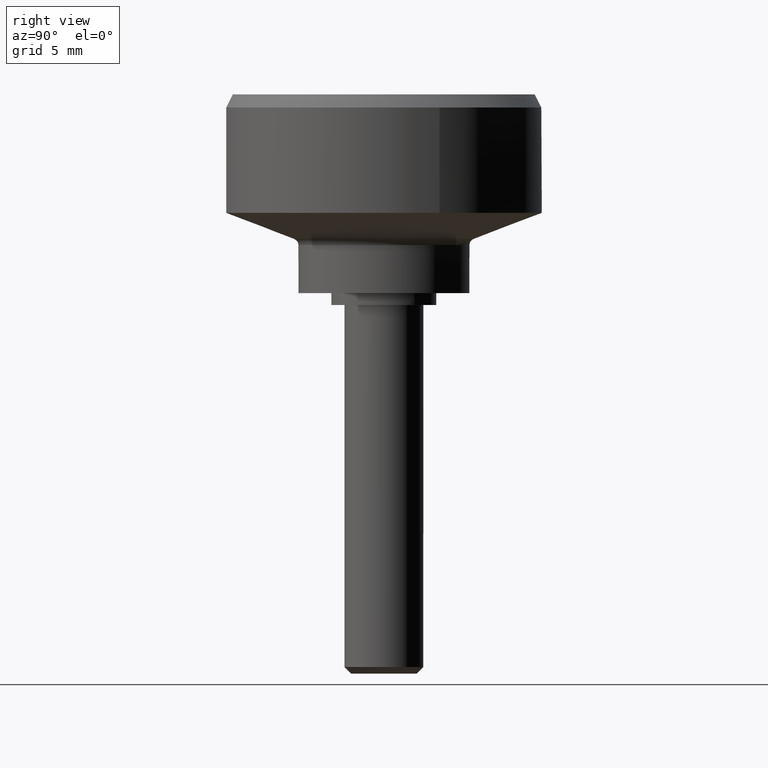
[diagram: clean part render]
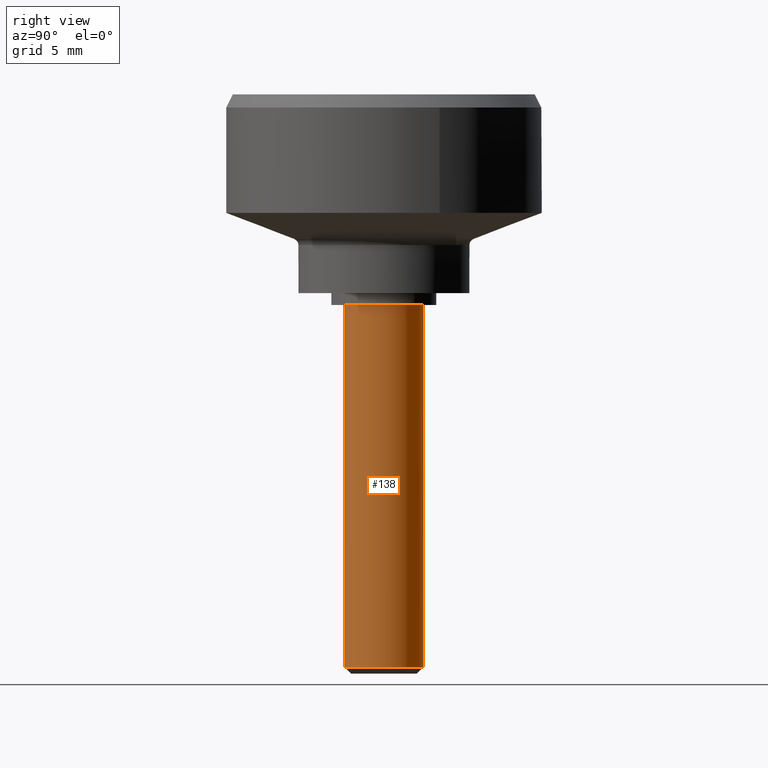
[diagram: same view with one face highlighted and labeled with its STEP entity id]
A machine part, right view. The second image highlights one B-rep face of the part: STEP entity #138.
In plain terms, the highlighted face is a freeform B-spline surface patch.
Its self-contained STEP definition (entity closure, byte-faithful):
#44=CARTESIAN_POINT('',(0.342301994221081,2.980407580307141,0.687500000000001));
#45=CARTESIAN_POINT('',(2.840867879739622,2.693445457758243,0.687500000000001));
#46=CARTESIAN_POINT('',(2.994404395265600,0.183145618604571,0.687500000000001));
#47=CARTESIAN_POINT('',(3.177550013870171,-2.811258776661029,0.687500000000001));
#48=CARTESIAN_POINT('',(0.183145618604571,-2.994404395265600,0.687500000000001));
#49=CARTESIAN_POINT('',(0.342301994221081,2.980407580307141,-28.204687500000002));
#50=CARTESIAN_POINT('',(2.840867879739622,2.693445457758243,-28.204687499999995));
#51=CARTESIAN_POINT('',(2.994404395265600,0.183145618604571,-28.204687499999999));
#52=CARTESIAN_POINT('',(3.177550013870171,-2.811258776661029,-28.204687500000009));
#53=CARTESIAN_POINT('',(0.183145618604571,-2.994404395265600,-28.204687499999999));
#61=(BOUNDED_SURFACE()B_SPLINE_SURFACE(2,1,((#44,#49),(#45,#50),(#46,#51),(#47,#52),(#48,#53)),.UNSPECIFIED.,.F.,.F.,.U.)B_SPLINE_SURFACE_WITH_KNOTS((3,2,3),(2,2),(0.0,4.374095218659882,9.344657967137021),(0.0,28.892187500000009),.UNSPECIFIED.)GEOMETRIC_REPRESENTATION_ITEM()RATIONAL_B_SPLINE_SURFACE(((0.938140952186599,0.938140952186599),(0.742253967444162,0.742253967444162),(1.0,1.0),(0.707106781186548,0.707106781186548),(1.0,1.0)))REPRESENTATION_ITEM('')SURFACE());
#62=CARTESIAN_POINT('',(0.342301994334178,2.980407580294152,-27.500000000000000));
#63=VERTEX_POINT('',#62);
#64=CARTESIAN_POINT('',(3.0,0.0,-27.500000000000000));
#65=VERTEX_POINT('',#64);
#66=CARTESIAN_POINT('',(0.342301994334178,2.980407580294152,-27.500000000000000));
#67=CARTESIAN_POINT('',(3.0,2.675169016952380,-27.499999999999993));
#68=CARTESIAN_POINT('',(3.0,0.0,-27.500000000000000));
#76=(BOUNDED_CURVE()B_SPLINE_CURVE(2,(#66,#67,#68),.UNSPECIFIED.,.F.,.U.)B_SPLINE_CURVE_WITH_KNOTS((3,3),(0.269767755889453,0.500000000000000),.UNSPECIFIED.)CURVE()GEOMETRIC_REPRESENTATION_ITEM()RATIONAL_B_SPLINE_CURVE((0.957343736435328,0.730266147791270,1.0))REPRESENTATION_ITEM(''));
#77=EDGE_CURVE('',#63,#65,#76,.T.);
#78=ORIENTED_EDGE('',*,*,#77,.F.);
#79=CARTESIAN_POINT('',(0.342301994345993,2.980407580292796,9.467430E-016));
#80=VERTEX_POINT('',#79);
#81=CARTESIAN_POINT('',(0.342301994345993,2.980407580292796,9.467430E-016));
#82=CARTESIAN_POINT('',(0.342301994334178,2.980407580294152,-27.500000000000000));
#83=QUASI_UNIFORM_CURVE('',1,(#81,#82),.UNSPECIFIED.,.F.,.U.);
#84=EDGE_CURVE('',#80,#63,#83,.T.);
#85=ORIENTED_EDGE('',*,*,#84,.F.);
#86=CARTESIAN_POINT('',(3.0,0.0,0.0));
#87=VERTEX_POINT('',#86);
#88=CARTESIAN_POINT('',(0.342301994345992,2.980407580292796,9.467430E-016));
#89=CARTESIAN_POINT('',(3.000000000000000,2.675169016931029,0.0));
#90=CARTESIAN_POINT('',(3.0,0.0,0.0));
#98=(BOUNDED_CURVE()B_SPLINE_CURVE(2,(#88,#89,#90),.UNSPECIFIED.,.F.,.U.)B_SPLINE_CURVE_WITH_KNOTS((3,3),(0.269767755890795,0.500000000000000),.UNSPECIFIED.)CURVE()GEOMETRIC_REPRESENTATION_ITEM()RATIONAL_B_SPLINE_CURVE((0.957343736432681,0.730266147792842,1.0))REPRESENTATION_ITEM(''));
#99=EDGE_CURVE('',#80,#87,#98,.T.);
#100=ORIENTED_EDGE('',*,*,#99,.T.);
#101=CARTESIAN_POINT('',(0.183145618633095,-2.994404395263856,9.992007E-016));
#102=VERTEX_POINT('',#101);
#103=CARTESIAN_POINT('',(3.0,0.0,0.0));
#104=CARTESIAN_POINT('',(3.000000000000000,-2.822118200663216,0.0));
#105=CARTESIAN_POINT('',(0.183145618633095,-2.994404395263855,9.992007E-016));
#113=(BOUNDED_CURVE()B_SPLINE_CURVE(2,(#103,#104,#105),.UNSPECIFIED.,.F.,.U.)B_SPLINE_CURVE_WITH_KNOTS((3,3),(0.500000000000000,0.739332962238681),.UNSPECIFIED.)CURVE()GEOMETRIC_REPRESENTATION_ITEM()RATIONAL_B_SPLINE_CURVE((1.0,0.719603993287017,0.976072041666156))REPRESENTATION_ITEM(''));
#114=EDGE_CURVE('',#87,#102,#113,.T.);
#115=ORIENTED_EDGE('',*,*,#114,.T.);
#116=CARTESIAN_POINT('',(0.209261452934010,-2.992578198234586,-27.499999999994770));
#117=VERTEX_POINT('',#116);
#118=CARTESIAN_POINT('',(0.183145618633095,-2.994404395263856,9.992007E-016));
#119=CARTESIAN_POINT('',(0.209261452934010,-2.992578198234586,-27.499999999994770));
#120=QUASI_UNIFORM_CURVE('',1,(#118,#119),.UNSPECIFIED.,.F.,.U.);
#121=EDGE_CURVE('',#102,#117,#120,.T.);
#122=ORIENTED_EDGE('',*,*,#121,.T.);
#123=CARTESIAN_POINT('',(3.0,0.0,-27.500000000000000));
#124=CARTESIAN_POINT('',(2.999996015830975,-2.797488282104740,-27.499999999997389));
#125=CARTESIAN_POINT('',(0.209261452934010,-2.992578198234586,-27.499999999994774));
#133=(BOUNDED_CURVE()B_SPLINE_CURVE(2,(#123,#124,#125),.UNSPECIFIED.,.F.,.U.)B_SPLINE_CURVE_WITH_KNOTS((3,3),(0.500000000000000,0.737829682994686),.UNSPECIFIED.)CURVE()GEOMETRIC_REPRESENTATION_ITEM()RATIONAL_B_SPLINE_CURVE((1.0,0.721365194473214,0.972871408704200))REPRESENTATION_ITEM(''));
#134=EDGE_CURVE('',#65,#117,#133,.T.);
#135=ORIENTED_EDGE('',*,*,#134,.F.);
#136=EDGE_LOOP('',(#78,#85,#100,#115,#122,#135));
#137=FACE_OUTER_BOUND('',#136,.T.);
#138=ADVANCED_FACE('',(#137),#61,.T.);